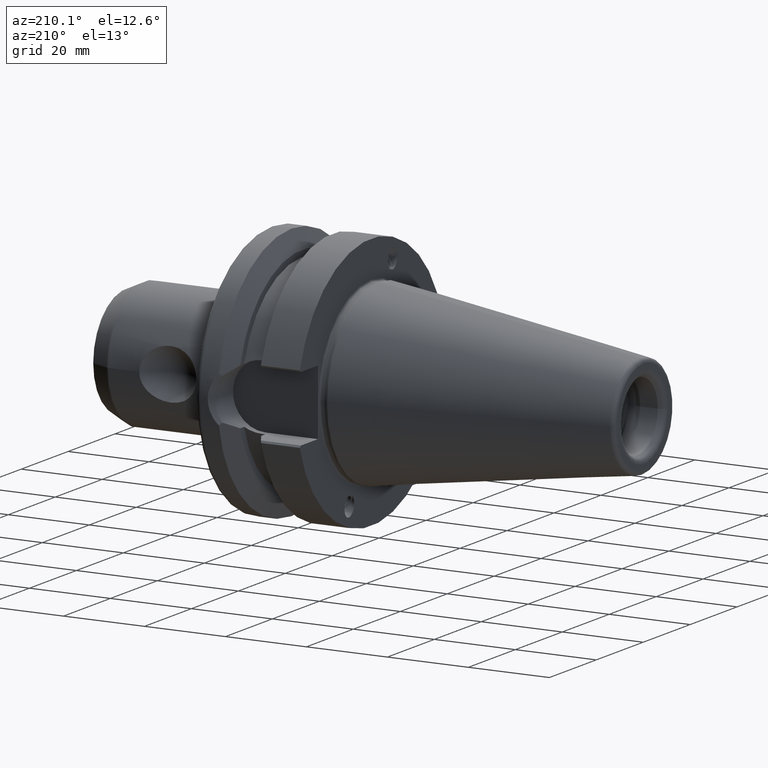
[diagram: clean part render]
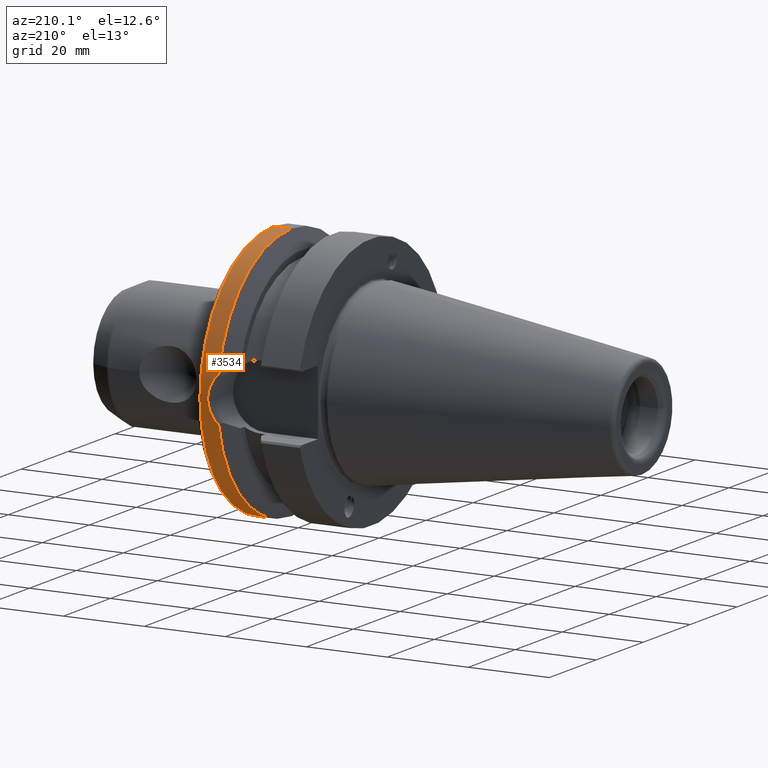
[diagram: same view with one face highlighted and labeled with its STEP entity id]
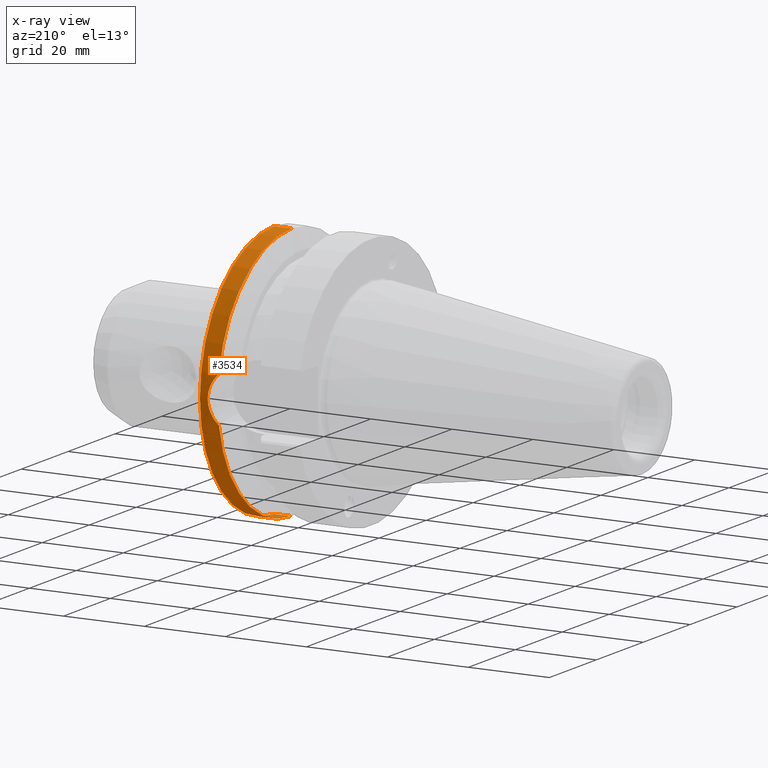
[diagram: x-ray of the same camera — body ghosted, the highlighted face saturated]
A machine part, auxiliary view. The second image highlights one B-rep face of the part: STEP entity #3534.
The next image is the same camera in x-ray: the body ghosted, the highlighted face saturated — about 0% of this face is hidden behind the body in this view.
In plain terms, the highlighted cylindrical surface (partial cylindrical patch) has radius 31.5 mm, axis along (-1, 0, 0).
Its self-contained STEP definition (entity closure, byte-faithful):
#1256=CARTESIAN_POINT('',(2.16309635E1,0.E0,0.E0));
#1257=DIRECTION('',(1.E0,0.E0,0.E0));
#1258=DIRECTION('',(0.E0,9.837685986673E-1,1.794417573372E-1));
#1259=AXIS2_PLACEMENT_3D('',#1256,#1257,#1258);
#1272=CARTESIAN_POINT('',(2.16309635E1,0.E0,0.E0));
#1273=DIRECTION('',(1.E0,0.E0,0.E0));
#1274=DIRECTION('',(0.E0,0.E0,-1.E0));
#1275=AXIS2_PLACEMENT_3D('',#1272,#1273,#1274);
#1343=CARTESIAN_POINT('',(2.16309635E1,3.098871085802E1,5.652415356123E0));
#1344=CARTESIAN_POINT('',(2.205406470720E1,3.106442652067E1,5.237313027381E0));
#1345=CARTESIAN_POINT('',(2.2780251E1,3.120646982831E1,4.364218678188E0));
#1346=CARTESIAN_POINT('',(2.355147335538E1,3.137333408805E1,2.944611025888E0));
#1347=CARTESIAN_POINT('',(2.400121643238E1,3.147668473496E1,1.481419229583E0));
#1348=CARTESIAN_POINT('',(2.414939013882E1,3.151165725113E1,3.213223407089E-5));
#1349=CARTESIAN_POINT('',(2.400122301211E1,3.147668626045E1,-1.481402813677E0));
#1350=CARTESIAN_POINT('',(2.355147353015E1,3.137333411343E1,-2.944610541152E0));
#1351=CARTESIAN_POINT('',(2.278025228010E1,3.120647009583E1,-4.364216804638E0));
#1352=CARTESIAN_POINT('',(2.205406501027E1,3.106442657491E1,-5.237312730042E0));
#1353=CARTESIAN_POINT('',(2.16309635E1,3.098871085802E1,-5.652415356123E0));
#1355=DIRECTION('',(-1.E0,2.306190177167E-13,0.E0));
#1356=VECTOR('',#1355,4.3690365E0);
#1357=CARTESIAN_POINT('',(2.6E1,-1.007582905999E-12,-3.15E1));
#1358=LINE('',#1357,#1356);
#1359=CARTESIAN_POINT('',(2.6E1,0.E0,0.E0));
#1360=DIRECTION('',(-1.E0,0.E0,0.E0));
#1361=DIRECTION('',(0.E0,0.E0,1.E0));
#1362=AXIS2_PLACEMENT_3D('',#1359,#1360,#1361);
#1364=DIRECTION('',(-1.E0,-3.069721239902E-13,0.E0));
#1365=VECTOR('',#1364,4.3690365E0);
#1366=CARTESIAN_POINT('',(2.6E1,1.339886535057E-12,3.15E1));
#1367=LINE('',#1366,#1365);
#1974=CARTESIAN_POINT('',(2.6E1,0.E0,-3.15E1));
#1975=CARTESIAN_POINT('',(2.6E1,0.E0,3.15E1));
#1976=VERTEX_POINT('',#1974);
#1977=VERTEX_POINT('',#1975);
#1982=CARTESIAN_POINT('',(2.16309635E1,0.E0,-3.15E1));
#1983=VERTEX_POINT('',#1982);
#1984=CARTESIAN_POINT('',(2.16309635E1,0.E0,3.15E1));
#1985=VERTEX_POINT('',#1984);
#2050=VERTEX_POINT('',#1343);
#2051=VERTEX_POINT('',#1353);
#3519=CARTESIAN_POINT('',(0.E0,0.E0,0.E0));
#3520=DIRECTION('',(-1.E0,0.E0,0.E0));
#3521=DIRECTION('',(0.E0,0.E0,-1.E0));
#3522=AXIS2_PLACEMENT_3D('',#3519,#3520,#3521);
#3523=CYLINDRICAL_SURFACE('',#3522,3.15E1);
#3525=ORIENTED_EDGE('',*,*,#3524,.T.);
#3526=ORIENTED_EDGE('',*,*,#3450,.F.);
#3527=ORIENTED_EDGE('',*,*,#3472,.F.);
#3529=ORIENTED_EDGE('',*,*,#3528,.F.);
#3530=ORIENTED_EDGE('',*,*,#3468,.T.);
#3531=ORIENTED_EDGE('',*,*,#3434,.F.);
#3532=EDGE_LOOP('',(#3525,#3526,#3527,#3529,#3530,#3531));
#3533=FACE_OUTER_BOUND('',#3532,.F.);
#3534=ADVANCED_FACE('',(#3533),#3523,.T.);
#1260=CIRCLE('',#1259,3.15E1);
#1276=CIRCLE('',#1275,3.15E1);
#1354=B_SPLINE_CURVE_WITH_KNOTS('',3,(#1343,#1344,#1345,#1346,#1347,#1348,#1349,
#1350,#1351,#1352,#1353),.UNSPECIFIED.,.F.,.F.,(4,1,1,1,1,1,1,1,4),(0.E0,
1.25E-1,2.5E-1,3.75E-1,5.E-1,6.25E-1,7.5E-1,8.75E-1,1.E0),.UNSPECIFIED.);
#1363=CIRCLE('',#1362,3.15E1);
#3434=EDGE_CURVE('',#2050,#1985,#1260,.T.);
#3450=EDGE_CURVE('',#1983,#2051,#1276,.T.);
#3468=EDGE_CURVE('',#1977,#1985,#1367,.T.);
#3472=EDGE_CURVE('',#1976,#1983,#1358,.T.);
#3524=EDGE_CURVE('',#2050,#2051,#1354,.T.);
#3528=EDGE_CURVE('',#1977,#1976,#1363,.T.);